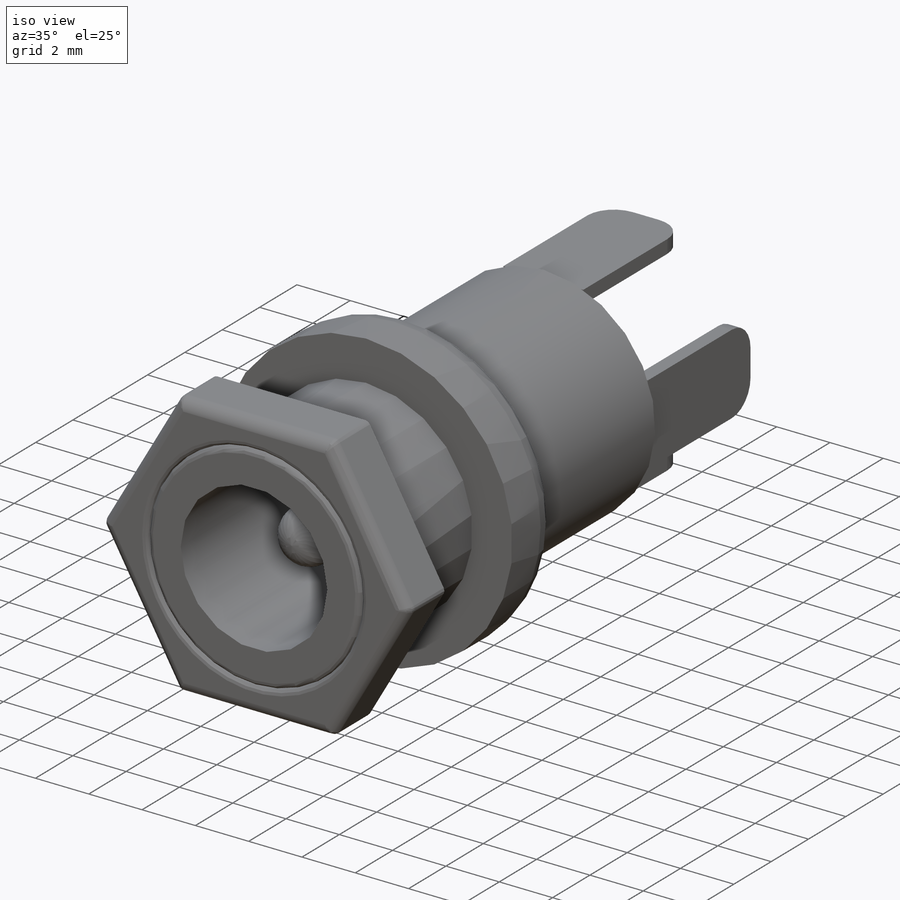
[diagram: iso view]
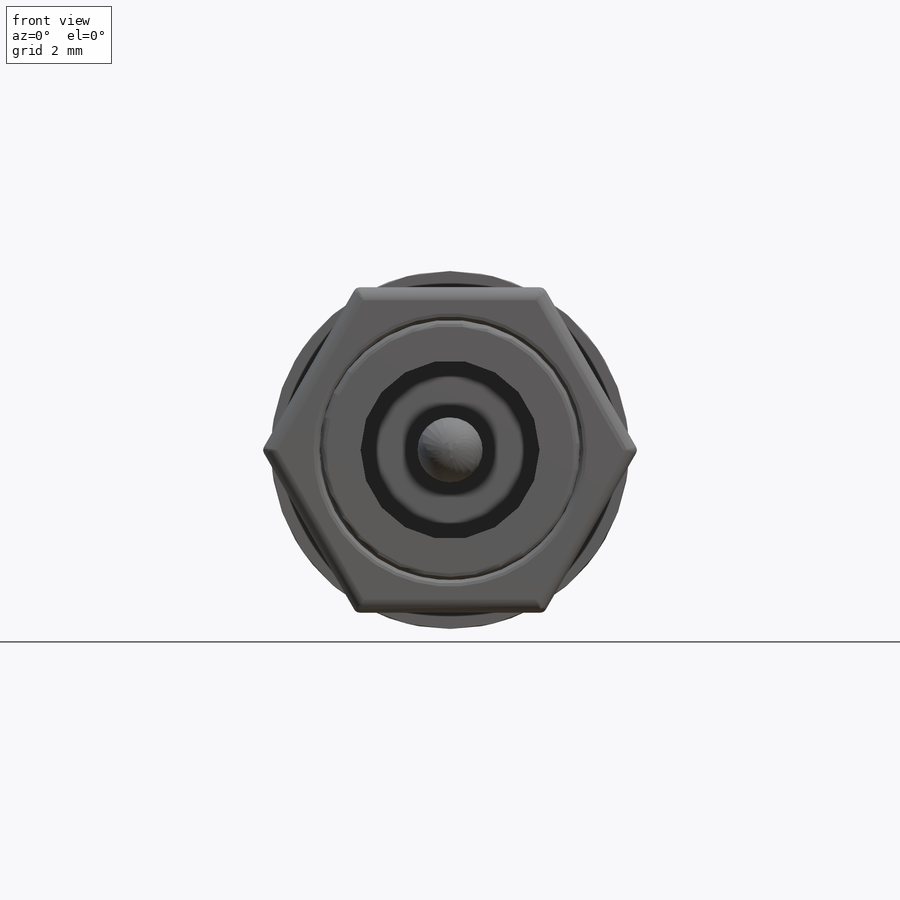
[diagram: front view]
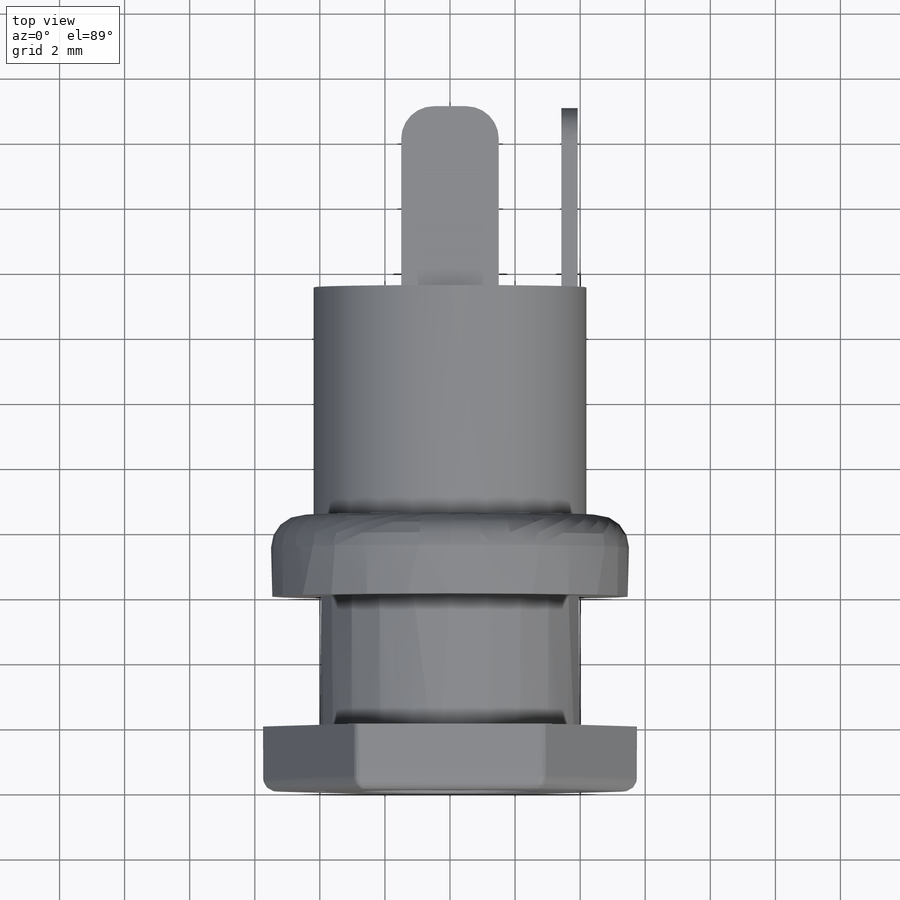
[diagram: top view]
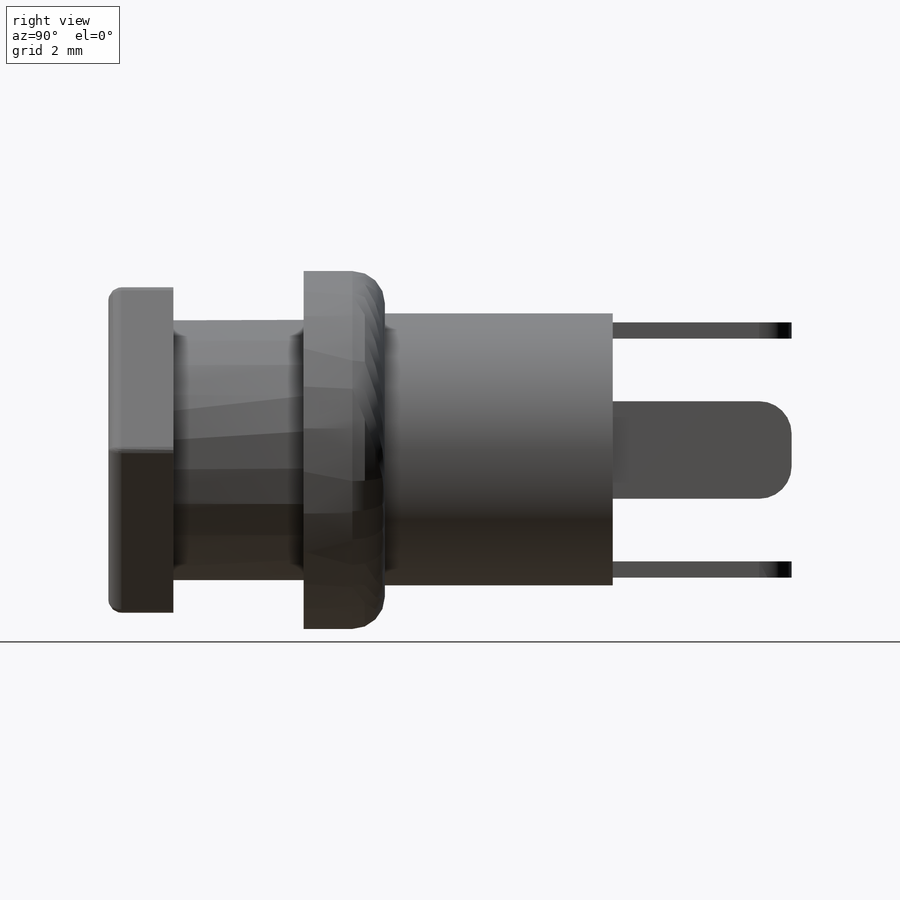
[diagram: right view]
SOLIDWORKS PART (.sldprt)
format: sldprt  version: not decoded by parser v0  size: 755,200 bytes
history: native  units: mm
features: fillet x10, sketch x6, extrude x4, plane x3, material x1, revolve x1, thread x1, cut_extrude x1 (+8 scaffold rows collapsed)
feature tree (35):
  scaffold x8  (default folders/planes/origin — collapsed)
  material  "Материал <не указан>"
  plane  "Спереди"
  plane  "Сверху"
  plane  "Справа"
  sketch  "Эскиз1"  dims[D1=4.0mm D2=2.5mm D3=5.5mm D4=4.2mm D5=6.0mm D6=15.5mm]
  revolve  "Повернуть1"  [1 undecoded]
  thread  "Условное изображение резьбы1"  Diameter=6.891mm  [1 undecoded]
  sketch  "Эскиз2"  dims[D1=0.5mm D2=3.0mm D3=3.0]
  extrude  "Бобышка-Вытянуть1"  Depth=5.5mm
  fillet  "Скругление1"  Radius=1mm
  fillet  "Скругление2"  Radius=1mm
  fillet  "Скругление3"  Radius=1mm
  fillet  "Скругление5"  Radius=1mm
  sketch  "Эскиз3"  dims[D1=5.5mm]
  cut_extrude  "Вырез-Вытянуть1"  Depth=11mm
  sketch  "Эскиз4"  dims[D1=2.0mm]
  extrude  "Бобышка-Вытянуть2"  Depth=9mm
  fillet  "Скругление4"  Radius=1mm
  sketch  "Эскиз5"  dims[D1=2.5mm]
  extrude  "Бобышка-Вытянуть3"  Depth=9mm
  fillet  "Скругление6"  Radius=1.25mm
  sketch  "Эскиз6"  dims[D1=10.0mm]
  extrude  "Бобышка-Вытянуть4"  Depth=2mm
  fillet  "Скругление7"  Radius=0.2mm
  fillet  "Скругление8"  Radius=0.2mm
  fillet  "Скругление9"  Radius=0.4mm
  fillet  "Скругление10"  Radius=0.2mm
decode coverage: 22 of 23 modeling features carry decoded parameters
note: 2 parameter values undecoded
note: suppression state not decoded; provenance and decode notes live in map.json
